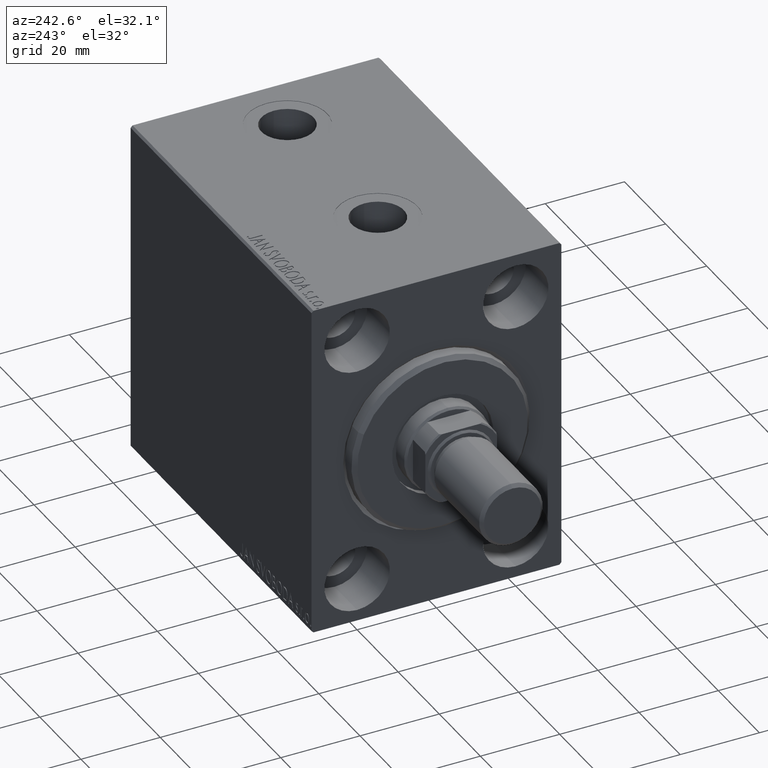
[diagram: clean part render]
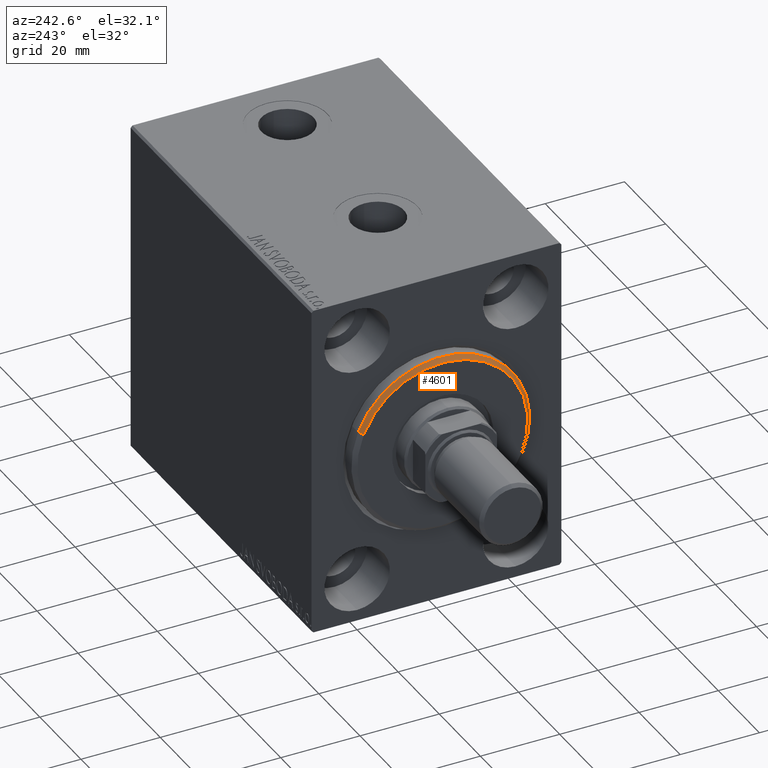
[diagram: same view with one face highlighted and labeled with its STEP entity id]
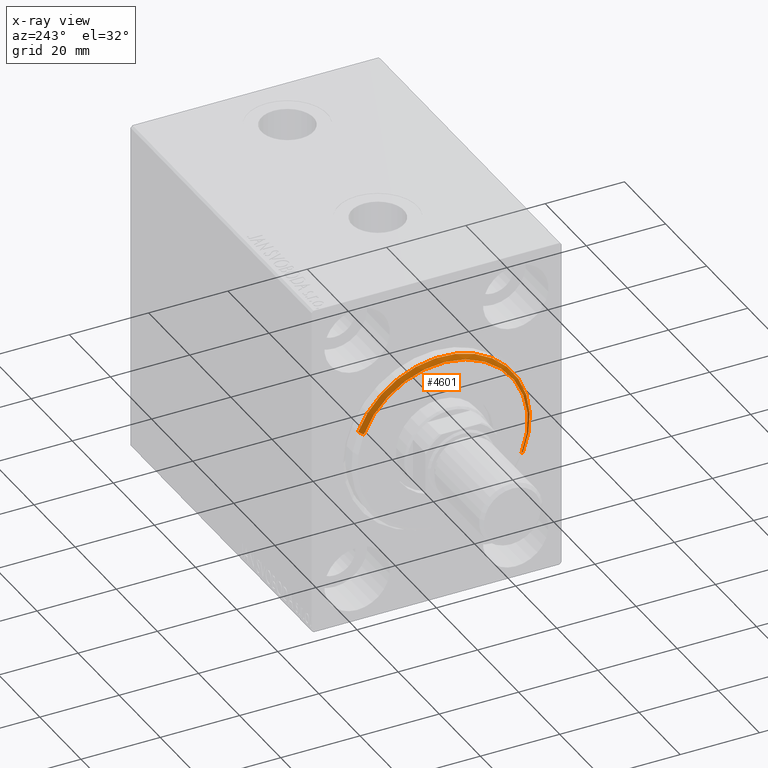
[diagram: x-ray of the same camera — body ghosted, the highlighted face saturated]
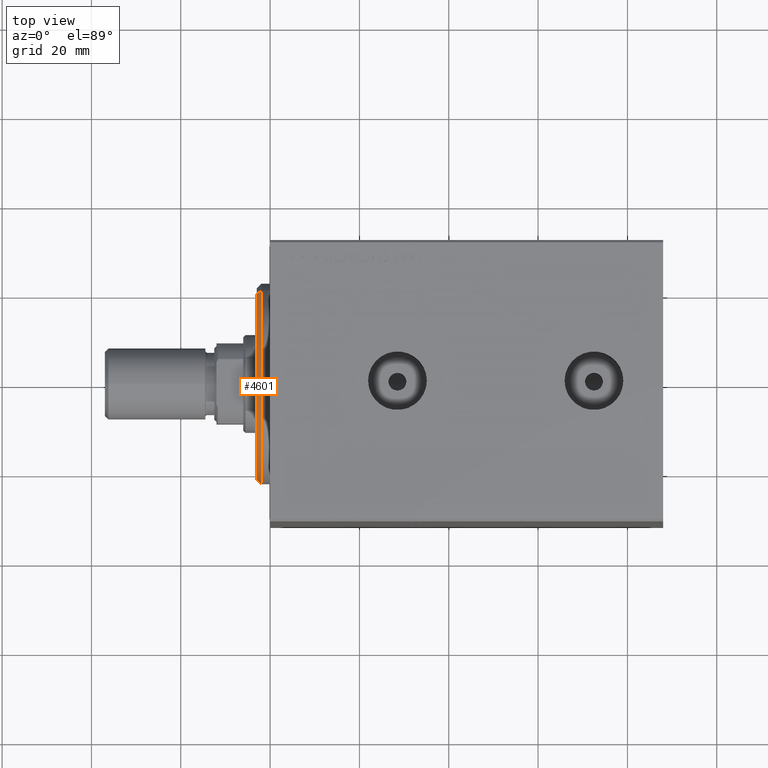
[diagram: same view with one face highlighted and labeled with its STEP entity id]
A machine part, auxiliary view. The second image highlights one B-rep face of the part: STEP entity #4601.
The next image is the same camera in x-ray: the body ghosted, the highlighted face saturated — about 0% of this face is hidden behind the body in this view.
A second angle (top view) of the same face is appended — the face is thin or edge-on in the first view.
In plain terms, the highlighted conical surface has half-angle 45 deg.
Its self-contained STEP definition (entity closure, byte-faithful):
#517 = DIRECTION ( 'NONE',  ( -0.7071067811865487940, 8.659560562354919300E-17, -0.7071067811865463515 ) ) ;
#3435 = LINE ( 'NONE', #24126, #35153 ) ;
#4601 = ADVANCED_FACE ( 'NONE', ( #19577 ), #21951, .T. ) ;
#5256 = ORIENTED_EDGE ( 'NONE', *, *, #37423, .F. ) ;
#5827 = CARTESIAN_POINT ( 'NONE',  ( 3.000000000000000000, 2.694222958124177598E-15, -21.50000000000000355 ) ) ;
#7366 = CIRCLE ( 'NONE', #19603, 22.50000000000000355 ) ;
#8637 = VERTEX_POINT ( 'NONE', #40690 ) ;
#9579 = CARTESIAN_POINT ( 'NONE',  ( 3.000000000000000000, 0.000000000000000000, 0.000000000000000000 ) ) ;
#10586 = CARTESIAN_POINT ( 'NONE',  ( 3.000000000000000000, 0.000000000000000000, 21.50000000000000355 ) ) ;
#11168 = AXIS2_PLACEMENT_3D ( 'NONE', #27199, #23612, #23389 ) ;
#11213 = VECTOR ( 'NONE', #11943, 1000.000000000000000 ) ;
#11714 = LINE ( 'NONE', #14640, #11213 ) ;
#11943 = DIRECTION ( 'NONE',  ( -0.7071067811865487940, 0.000000000000000000, 0.7071067811865463515 ) ) ;
#12352 = EDGE_CURVE ( 'NONE', #28477, #8637, #7366, .T. ) ;
#14640 = CARTESIAN_POINT ( 'NONE',  ( 3.000000000000000000, 0.000000000000000000, 21.50000000000000355 ) ) ;
#19577 = FACE_OUTER_BOUND ( 'NONE', #37618, .T. ) ;
#19603 = AXIS2_PLACEMENT_3D ( 'NONE', #20906, #27420, #38657 ) ;
#20906 = CARTESIAN_POINT ( 'NONE',  ( 1.999999999999999112, 0.000000000000000000, 0.000000000000000000 ) ) ;
#21951 = CONICAL_SURFACE ( 'NONE', #11168, 21.50000000000000355, 0.7853981633974466137 ) ;
#23086 = ORIENTED_EDGE ( 'NONE', *, *, #36933, .F. ) ;
#23231 = ORIENTED_EDGE ( 'NONE', *, *, #27268, .T. ) ;
#23305 = DIRECTION ( 'NONE',  ( 1.000000000000000000, -0.000000000000000000, 0.000000000000000000 ) ) ;
#23389 = DIRECTION ( 'NONE',  ( 0.000000000000000000, 0.000000000000000000, 1.000000000000000000 ) ) ;
#23612 = DIRECTION ( 'NONE',  ( -1.000000000000000000, 0.000000000000000000, 0.000000000000000000 ) ) ;
#24126 = CARTESIAN_POINT ( 'NONE',  ( 3.000000000000000000, 2.632990618166810024E-15, -21.50000000000000355 ) ) ;
#27199 = CARTESIAN_POINT ( 'NONE',  ( 3.000000000000000000, 0.000000000000000000, 0.000000000000000000 ) ) ;
#27268 = EDGE_CURVE ( 'NONE', #43886, #8637, #11714, .T. ) ;
#27420 = DIRECTION ( 'NONE',  ( -1.000000000000000000, 0.000000000000000000, 0.000000000000000000 ) ) ;
#28477 = VERTEX_POINT ( 'NONE', #43982 ) ;
#30885 = CIRCLE ( 'NONE', #38033, 21.50000000000000355 ) ;
#31017 = VERTEX_POINT ( 'NONE', #5827 ) ;
#35153 = VECTOR ( 'NONE', #517, 1000.000000000000000 ) ;
#36933 = EDGE_CURVE ( 'NONE', #31017, #28477, #3435, .T. ) ;
#37423 = EDGE_CURVE ( 'NONE', #43886, #31017, #30885, .T. ) ;
#37618 = EDGE_LOOP ( 'NONE', ( #23086, #5256, #23231, #44405 ) ) ;
#37898 = DIRECTION ( 'NONE',  ( 0.000000000000000000, 0.000000000000000000, -1.000000000000000000 ) ) ;
#38033 = AXIS2_PLACEMENT_3D ( 'NONE', #9579, #23305, #37898 ) ;
#38657 = DIRECTION ( 'NONE',  ( 0.000000000000000000, 0.000000000000000000, -1.000000000000000000 ) ) ;
#40690 = CARTESIAN_POINT ( 'NONE',  ( 1.999999999999999112, 0.000000000000000000, 22.50000000000000355 ) ) ;
#43886 = VERTEX_POINT ( 'NONE', #10586 ) ;
#43982 = CARTESIAN_POINT ( 'NONE',  ( 1.999999999999999112, 2.755455298081545172E-15, -22.50000000000000355 ) ) ;
#44405 = ORIENTED_EDGE ( 'NONE', *, *, #12352, .F. ) ;